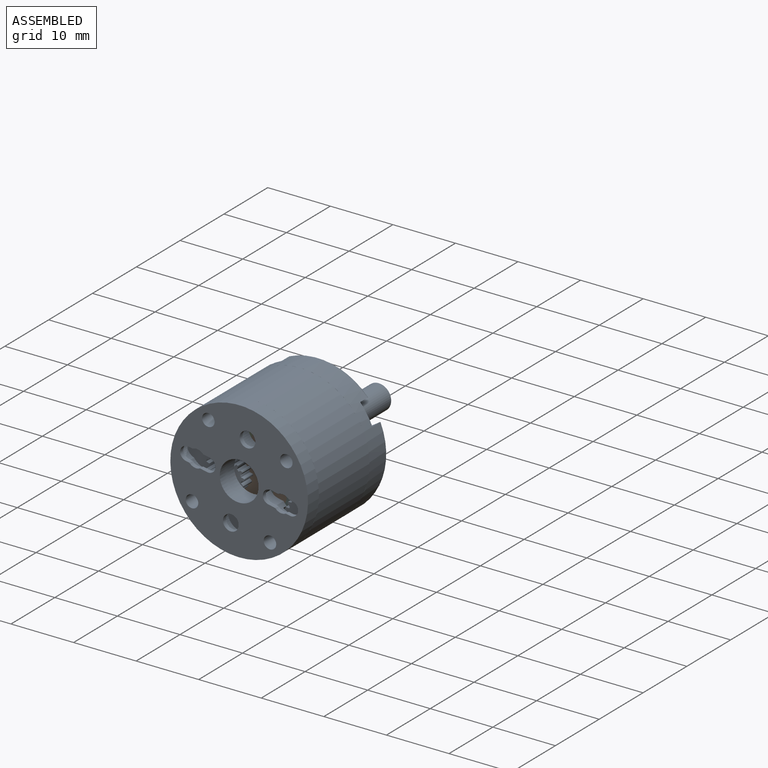
[diagram: assembled view]
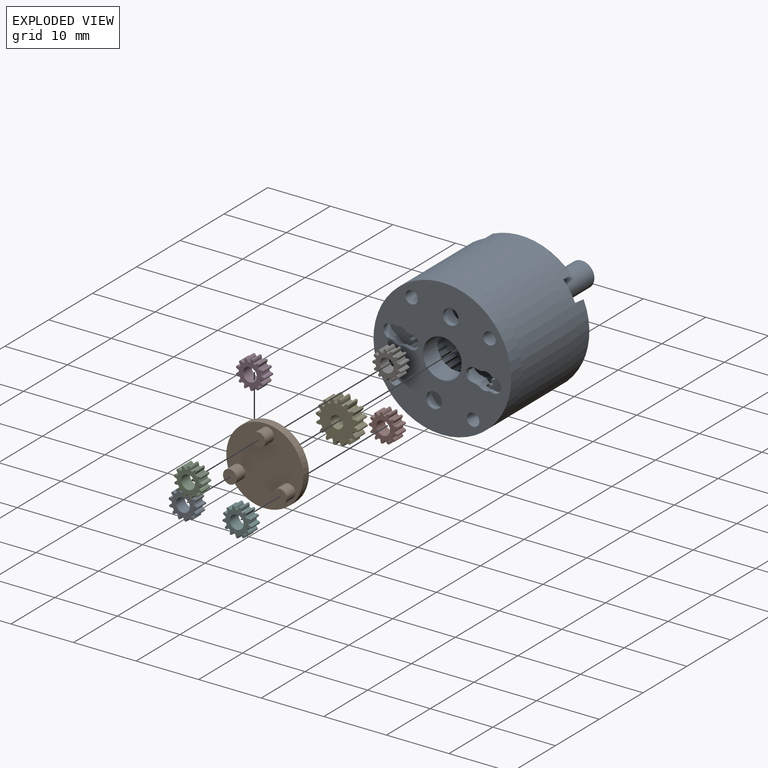
[diagram: exploded view]
GUIDED TOUR — MATED ASSEMBLY WITH SUBASSEMBLIES (Onshape document 57b5218062b9e988025ecf4e, AutoMate assembly 57b5218062b9e988025ecf4e_8886c2490278dff94fc5679e_6abe86f30e36404e3b47016e_default)

This assembly has 12 component occurrences arranged in 9 top-level units: 8 individual components plus 1 subassembly (S0). The tour has two levels: first the top level, where each subassembly is treated as one rigid unit; then each subassembly is toured internally in its own section (nesting deeper than one subassembly level is flattened into its subassembly's section).

Components are labeled P0..P11 across the whole record; subassembly units are labeled S0..S0. A mate is a constraint between two units; its type names the relative motion it leaves free:
  CYLINDRICAL — leaves both rotation about and translation along the listed axis free,
  FASTENED — locks the two components together rigidly (no relative motion),
  PLANAR — leaves sliding in the plane through the listed point (normal = the listed direction) and rotation about that normal free,
  REVOLUTE — leaves rotation about the listed axis free (a hinge).
Axis/direction vectors are unit vectors and 'through' points are millimeter coordinates, both in the assembly's world frame.

TOP-LEVEL MATES (between units; each subassembly's internal mates are listed in its own section)
  1. REVOLUTE "Revolute 1": P6 <-> S0, axis (0.000, 1.000, 0.000) through (-0.09, 2.40, -3.83) mm
  2. REVOLUTE "Revolute 3": P10 <-> S0, axis (0.000, 1.000, 0.000) through (6.83, 2.40, -4.16) mm
  3. CYLINDRICAL "Cylindrical 1": P2 <-> S0, axis (0.000, 1.000, 0.000) through (3.46, -0.65, -2.00) mm
  4. REVOLUTE "Revolute 6": P3 <-> P2, axis (0.000, 1.000, 0.000) through (3.86, -1.30, 2.60) mm
  5. REVOLUTE "Revolute 2": P9 <-> S0, axis (0.000, 1.000, 0.000) through (3.65, 2.40, 2.00) mm
  6. PLANAR "Planar 1": S0 <-> P2, direction (0.000, -1.000, 0.000) through (3.65, 0.40, 2.00) mm
  7. REVOLUTE "Revolute 5": P8 <-> P2, axis (0.000, 1.000, 0.000) through (7.25, -1.30, -4.64) mm
  8. FASTENED "Fastened 1": P7 <-> P2, direction (0.000, -1.000, 0.000) through (3.46, 0.00, -2.00) mm
  9. REVOLUTE "Revolute 7": P11 <-> P2, axis (0.000, 1.000, 0.000) through (-0.72, -1.30, -3.96) mm

TOP-LEVEL ASSEMBLY ORDER
  1. P2 — the base component [order heuristic]
  2. P7 [order verified]
  3. P3 — core [order heuristic]
  4. P8 — core [order heuristic]
  5. P11 — core [order heuristic]
  6. S0 — core [order heuristic]
  7. P10 [order verified]
  8. P9 [order verified]
  9. P6 [order verified]
(P10 verified with a relaxed clearance tolerance: the source model stores slight part interference there.)
Order-tag legend:
  [order verified] — this step's position reverses a verified removal order: the component was checked to insert without passing through the ones already placed.
  [order heuristic] — the first 5 components form the assembly's core: parts whose collision-free extraction could not be verified, listed in mate-graph order.

Of the 12 component occurrences, 3 carry the full construction recipe — the FeatureScript program that regenerates the part's solid from scratch; the rest are supplied as boundary geometry only. Each toured unit is shown spotlighted twice — assembled, then exploded with a leader line back to its socket (green = recipe-attached component, orange = geometry-only, blue = subassembly unit; the rest desaturated gray).
NOTE — document 2 of 2 of this assembly tour. The two overview renders and the header above are repeated from document 1; the component sections below continue where the previous document stopped.
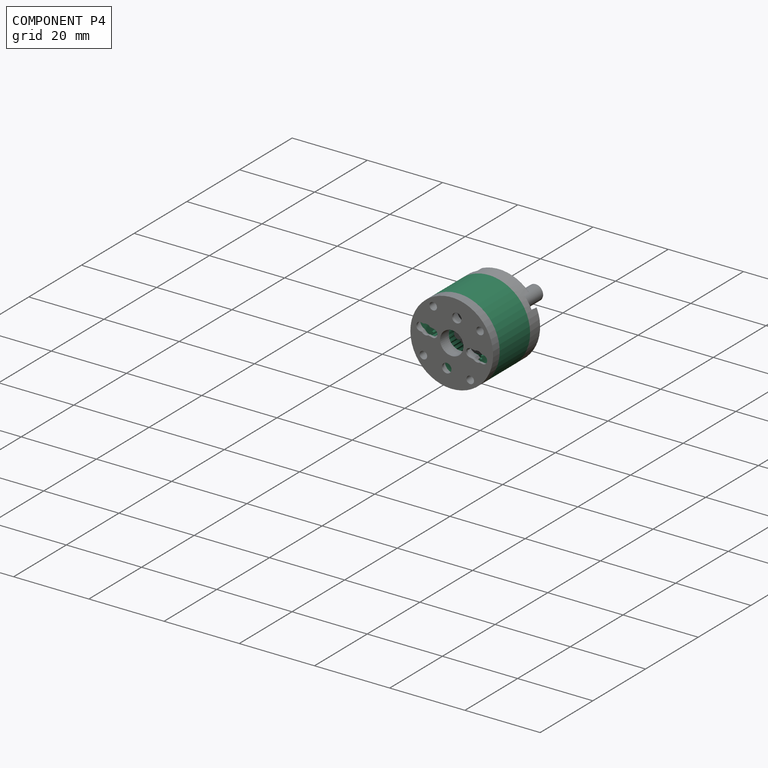
[diagram: component P4 — assembled]
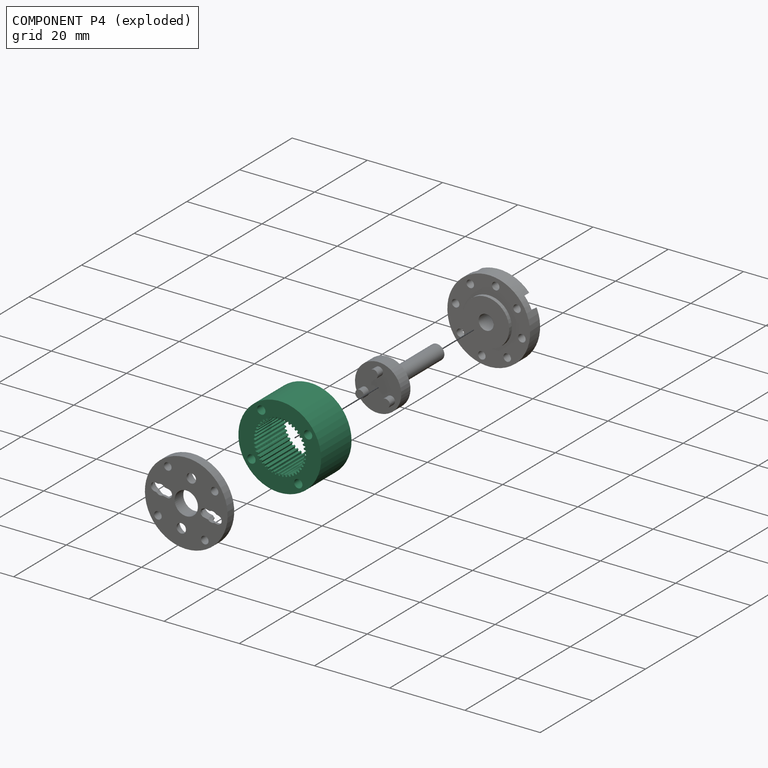
[diagram: component P4 — exploded]
COMPONENT P4 — recipe-attached (CADFS 00161367, mesh-verified: the recipe's output STEP matches this component's geometry to below the mesh-comparison resolution (tessellation chordal tolerance ~0.0497 mm)).
Held by: CYLINDRICAL mate "Cylindrical 2" to P1; REVOLUTE mate "Revolute 3" to P1; REVOLUTE mate "Revolute 2" to P0; CYLINDRICAL mate "Cylindrical 1" to P0; REVOLUTE mate "Revolute 2" to P0; REVOLUTE mate "Revolute 3" to P1; CYLINDRICAL mate "Cylindrical 2" to P1; CYLINDRICAL mate "Cylindrical 1" to P0.
Construction recipe (FeatureScript — the CAD program that rebuilds this solid; sketch coordinates are in the units given by the * unit suffixes, e.g. mm):

FeatureScript 1540;
import(path : "onshape/std/geometry.fs", version : "1540.0");
import(path : "onshape/std/common.fs", version : "1540.0");
const mm = millimeter;
const VERTEX = EntityType.VERTEX;
const EDGE = EntityType.EDGE;
const FACE = EntityType.FACE;
const BODY = EntityType.BODY;
function v(x, y){return vector(x, y);}
function OD(order){return orderDisambiguation(order);}
function OSD(set){return originalSetDisambiguation(set);}
function TD(topology){return topologyDisambiguation(topology);}
function TDD(query){return trueDependencyDisambiguation(query);}
function sQuery(a, b, c) {return sketchEntityQuery(a, b, c);}

annotation { "Feature Type Name" : "Feature", "Feature Type Description" : "" }
export const myFeature = defineFeature(function(context is Context, id is Id, definition is map)
    precondition{}
    {
        {
            var Q0;
            Q0=qCreatedBy(makeId("Front.planeOp"),FACE);
            var sketch = newSketch(context, id + "F0", { "sketchPlane" : qUnion([Q0])});
            skCircle(sketch, "E0", {"center": v(0, 0) * mm, "radius": 11 * mm});
            skSolve(sketch);
        }
        {
            var Q0;
            Q0=qSketchRegion(id+"F0",true);
            var Q1;
            Q1=makeQuery(id+"F0.imprint","IMPRINT",FACE,{"disambiguationData":[TD([[makeQuery(id+"F0.imprint","IMPRINT",EDGE,{"derivedFrom":sQuery(id+"F0.wireOp",EDGE,"E0")}),1.0]])]});
            extrude(context, id + "F1", {"entities" : qUnion([Q0, Q1]), "depth" : 11.55 * mm});
        }
        {
            var Q0;
            Q0=makeQuery(id+"F1.opExtrude","CAP_FACE",FACE,{"disambiguationData":[OSD([sQuery(id+"F0.wireOp",EDGE,"E0"),sQuery(id+"F0.wireOp",EDGE,"2902f3af-6cdb-4536-80c8-8346aa25ecb7")])],"isStart":false});
            var sketch = newSketch(context, id + "F2", { "sketchPlane" : qUnion([Q0])});
            skLineSegment(sketch, "E1", {"start": v(0, 27.51) * mm, "end": v(0, -34.9) * mm, "construction": true});
            skCircle(sketch, "E2", {"center": v(0, 9) * mm, "radius": 1.1 * mm});
            skCircle(sketch, "E3.1.0", {"center": v(-9, 0) * mm, "radius": 1.1 * mm});
            skCircle(sketch, "E3.2.0", {"center": v(0, -9) * mm, "radius": 1.1 * mm});
            skCircle(sketch, "E3.3.0", {"center": v(9, 0) * mm, "radius": 1.1 * mm});
            skPoint(sketch, "E3.center", {"position": v(0, 0) * mm});
            skSolve(sketch);
        }
        {
            var Q0;
            Q0=qSketchRegion(id+"F2",true);
            extrude(context, id + "F3", {"entities" : qUnion([Q0]), "operationType" : NewBodyOperationType.REMOVE, "endBound" : BoundingType.THROUGH_ALL, "oppositeDirection" : true, "depth" : 25 * mm});
        }
        {
            var Q0;
            Q0=makeQuery(id+"F1.opExtrude","CAP_FACE",FACE,{"disambiguationData":[OSD([sQuery(id+"F0.wireOp",EDGE,"E0")])],"isStart":false});
            var sketch = newSketch(context, id + "F4", { "sketchPlane" : qUnion([Q0])});
            skCircle(sketch, "E4", {"center": v(0, 0) * mm, "radius": 7 * mm, "construction": true});
            skCircle(sketch, "E5", {"center": v(0, 0) * mm, "radius": 6.75 * mm, "construction": true});
            skCircle(sketch, "E6", {"center": v(0, 0) * mm, "radius": 6.5 * mm, "construction": true});
            skLineSegment(sketch, "E7", {"start": v(0, 0) * mm, "end": v(0, 20.22) * mm, "construction": true});
            skLineSegment(sketch, "E8", {"start": v(0, 0) * mm, "end": v(-0.7, 20.22) * mm, "construction": true});
            skLineSegment(sketch, "E9", {"start": v(0, 6.75) * mm, "end": v(-8.2, 6.75) * mm, "construction": true});
            skLineSegment(sketch, "E10", {"start": v(0, 6.75) * mm, "end": v(-7.4, 4.05) * mm, "construction": true});
            skCircle(sketch, "E11", {"center": v(0, 6.75) * mm, "radius": 2.07 * mm, "construction": true});
            skCircle(sketch, "E12", {"center": v(-1.95, 6.04) * mm, "radius": 2.07 * mm, "construction": true});
            skArc(sketch, "E13", {"start": v(-0.1, 7) * mm, "mid": v(0, 6.76) * mm, "end": v(0.07, 6.5) * mm, "construction": true});
            skArc(sketch, "E14.MirrorCS", {"start": v(-0.37, 7) * mm, "mid": v(-0.46, 6.74) * mm, "end": v(-0.52, 6.48) * mm, "construction": true});
            skArc(sketch, "E15", {"start": v(-0.37, 6.98) * mm, "mid": v(-0.46, 6.74) * mm, "end": v(-0.52, 6.49) * mm});
            skArc(sketch, "E16", {"start": v(-0.36, 7) * mm, "mid": v(-0.24, 7) * mm, "end": v(-0.12, 7) * mm});
            skArc(sketch, "E17", {"start": v(-0.1, 7) * mm, "mid": v(0, 6.76) * mm, "end": v(0.07, 6.5) * mm});
            skArc(sketch, "E18", {"start": v(-0.53, 6.48) * mm, "mid": v(0.22, -6.5) * mm, "end": v(0.08, 6.5) * mm});
            skPoint(sketch, "E19.visualSharp", {"position": v(-0.52, 6.48) * mm});
            skArc(sketch, "E19.filletArc", {"start": v(-0.53, 6.48) * mm, "mid": v(-0.52, 6.48) * mm, "end": v(-0.52, 6.49) * mm});
            skPoint(sketch, "E20.visualSharp", {"position": v(-0.37, 7) * mm});
            skArc(sketch, "E20.filletArc", {"start": v(-0.36, 7) * mm, "mid": v(-0.37, 6.99) * mm, "end": v(-0.37, 6.98) * mm});
            skPoint(sketch, "E21.visualSharp", {"position": v(-0.1, 7) * mm});
            skArc(sketch, "E21.filletArc", {"start": v(-0.1, 7) * mm, "mid": v(-0.11, 7) * mm, "end": v(-0.12, 7) * mm});
            skPoint(sketch, "E22.visualSharp", {"position": v(0.07, 6.5) * mm});
            skArc(sketch, "E22.filletArc", {"start": v(0.07, 6.5) * mm, "mid": v(0.08, 6.5) * mm, "end": v(0.08, 6.5) * mm});
            skArc(sketch, "E23.1.0", {"start": v(-1.44, 6.34) * mm, "mid": v(-1.44, 6.34) * mm, "end": v(-1.43, 6.35) * mm});
            skArc(sketch, "E23.1.1", {"start": v(-1.36, 6.86) * mm, "mid": v(-1.41, 6.6) * mm, "end": v(-1.43, 6.35) * mm});
            skArc(sketch, "E23.1.2", {"start": v(-1.35, 6.87) * mm, "mid": v(-1.36, 6.87) * mm, "end": v(-1.36, 6.86) * mm});
            skArc(sketch, "E23.1.3", {"start": v(-1.35, 6.87) * mm, "mid": v(-1.23, 6.9) * mm, "end": v(-1.11, 6.91) * mm});
            skArc(sketch, "E23.1.4", {"start": v(-1.1, 6.9) * mm, "mid": v(-1.1, 6.91) * mm, "end": v(-1.11, 6.91) * mm});
            skArc(sketch, "E23.1.5", {"start": v(-1.1, 6.9) * mm, "mid": v(-0.96, 6.69) * mm, "end": v(-0.86, 6.45) * mm});
            skArc(sketch, "E23.1.6", {"start": v(-0.86, 6.45) * mm, "mid": v(-0.85, 6.45) * mm, "end": v(-0.84, 6.45) * mm});
            skArc(sketch, "E23.2.0", {"start": v(-2.33, 6.07) * mm, "mid": v(-2.32, 6.07) * mm, "end": v(-2.32, 6.08) * mm});
            skArc(sketch, "E23.2.1", {"start": v(-2.32, 6.6) * mm, "mid": v(-2.34, 6.34) * mm, "end": v(-2.32, 6.08) * mm});
            skArc(sketch, "E23.2.2", {"start": v(-2.31, 6.6) * mm, "mid": v(-2.32, 6.6) * mm, "end": v(-2.32, 6.6) * mm});
            skArc(sketch, "E23.2.3", {"start": v(-2.31, 6.6) * mm, "mid": v(-2.2, 6.65) * mm, "end": v(-2.09, 6.68) * mm});
            skArc(sketch, "E23.2.4", {"start": v(-2.07, 6.68) * mm, "mid": v(-2.08, 6.68) * mm, "end": v(-2.09, 6.68) * mm});
            skArc(sketch, "E23.2.5", {"start": v(-2.07, 6.68) * mm, "mid": v(-1.9, 6.48) * mm, "end": v(-1.77, 6.27) * mm});
            skArc(sketch, "E23.2.6", {"start": v(-1.77, 6.27) * mm, "mid": v(-1.76, 6.26) * mm, "end": v(-1.75, 6.26) * mm});
            skArc(sketch, "E23.3.0", {"start": v(-3.17, 5.67) * mm, "mid": v(-3.17, 5.68) * mm, "end": v(-3.16, 5.69) * mm});
            skArc(sketch, "E23.3.1", {"start": v(-3.24, 6.2) * mm, "mid": v(-3.22, 5.94) * mm, "end": v(-3.16, 5.69) * mm});
            skArc(sketch, "E23.3.2", {"start": v(-3.23, 6.2) * mm, "mid": v(-3.24, 6.2) * mm, "end": v(-3.24, 6.2) * mm});
            skArc(sketch, "E23.3.3", {"start": v(-3.23, 6.2) * mm, "mid": v(-3.12, 6.26) * mm, "end": v(-3.01, 6.32) * mm});
            skArc(sketch, "E23.3.4", {"start": v(-3, 6.32) * mm, "mid": v(-3, 6.32) * mm, "end": v(-3.01, 6.32) * mm});
            skArc(sketch, "E23.3.5", {"start": v(-3, 6.32) * mm, "mid": v(-2.8, 6.14) * mm, "end": v(-2.64, 5.95) * mm});
            skArc(sketch, "E23.3.6", {"start": v(-2.64, 5.95) * mm, "mid": v(-2.63, 5.95) * mm, "end": v(-2.62, 5.95) * mm});
            skArc(sketch, "E23.4.0", {"start": v(-3.95, 5.16) * mm, "mid": v(-3.94, 5.17) * mm, "end": v(-3.94, 5.18) * mm});
            skArc(sketch, "E23.4.1", {"start": v(-4.09, 5.67) * mm, "mid": v(-4.03, 5.42) * mm, "end": v(-3.94, 5.18) * mm});
            skArc(sketch, "E23.4.2", {"start": v(-4.08, 5.69) * mm, "mid": v(-4.09, 5.68) * mm, "end": v(-4.09, 5.67) * mm});
            skArc(sketch, "E23.4.3", {"start": v(-4.08, 5.69) * mm, "mid": v(-3.98, 5.76) * mm, "end": v(-3.88, 5.82) * mm});
            skArc(sketch, "E23.4.4", {"start": v(-3.87, 5.82) * mm, "mid": v(-3.88, 5.83) * mm, "end": v(-3.88, 5.82) * mm});
            skArc(sketch, "E23.4.5", {"start": v(-3.87, 5.82) * mm, "mid": v(-3.65, 5.68) * mm, "end": v(-3.46, 5.52) * mm});
            skArc(sketch, "E23.4.6", {"start": v(-3.46, 5.52) * mm, "mid": v(-3.45, 5.51) * mm, "end": v(-3.44, 5.51) * mm});
            skArc(sketch, "E23.5.0", {"start": v(-4.64, 4.55) * mm, "mid": v(-4.64, 4.56) * mm, "end": v(-4.64, 4.57) * mm});
            skArc(sketch, "E23.5.1", {"start": v(-4.85, 5.03) * mm, "mid": v(-4.76, 4.8) * mm, "end": v(-4.64, 4.57) * mm});
            skArc(sketch, "E23.5.2", {"start": v(-4.85, 5.05) * mm, "mid": v(-4.85, 5.04) * mm, "end": v(-4.85, 5.03) * mm});
            skArc(sketch, "E23.5.3", {"start": v(-4.85, 5.05) * mm, "mid": v(-4.76, 5.13) * mm, "end": v(-4.67, 5.21) * mm});
            skArc(sketch, "E23.5.4", {"start": v(-4.66, 5.21) * mm, "mid": v(-4.67, 5.22) * mm, "end": v(-4.67, 5.21) * mm});
            skArc(sketch, "E23.5.5", {"start": v(-4.66, 5.21) * mm, "mid": v(-4.43, 5.1) * mm, "end": v(-4.2, 4.97) * mm});
            skArc(sketch, "E23.5.6", {"start": v(-4.2, 4.97) * mm, "mid": v(-4.2, 4.96) * mm, "end": v(-4.2, 4.97) * mm});
            skArc(sketch, "E23.6.0", {"start": v(-5.24, 3.84) * mm, "mid": v(-5.24, 3.85) * mm, "end": v(-5.24, 3.86) * mm});
            skArc(sketch, "E23.6.1", {"start": v(-5.52, 4.3) * mm, "mid": v(-5.4, 4.07) * mm, "end": v(-5.24, 3.86) * mm});
            skArc(sketch, "E23.6.2", {"start": v(-5.52, 4.3) * mm, "mid": v(-5.52, 4.3) * mm, "end": v(-5.52, 4.3) * mm});
            skArc(sketch, "E23.6.3", {"start": v(-5.52, 4.3) * mm, "mid": v(-5.44, 4.4) * mm, "end": v(-5.37, 4.5) * mm});
            skArc(sketch, "E23.6.4", {"start": v(-5.35, 4.5) * mm, "mid": v(-5.36, 4.5) * mm, "end": v(-5.37, 4.5) * mm});
            skArc(sketch, "E23.6.5", {"start": v(-5.35, 4.5) * mm, "mid": v(-5.1, 4.42) * mm, "end": v(-4.87, 4.32) * mm});
            skArc(sketch, "E23.6.6", {"start": v(-4.87, 4.32) * mm, "mid": v(-4.86, 4.32) * mm, "end": v(-4.86, 4.32) * mm});
            skArc(sketch, "E23.7.0", {"start": v(-5.74, 3.06) * mm, "mid": v(-5.73, 3.07) * mm, "end": v(-5.74, 3.08) * mm});
            skArc(sketch, "E23.7.1", {"start": v(-6.08, 3.46) * mm, "mid": v(-5.92, 3.26) * mm, "end": v(-5.74, 3.08) * mm});
            skArc(sketch, "E23.7.2", {"start": v(-6.08, 3.48) * mm, "mid": v(-6.08, 3.47) * mm, "end": v(-6.08, 3.46) * mm});
            skArc(sketch, "E23.7.3", {"start": v(-6.08, 3.48) * mm, "mid": v(-6.01, 3.58) * mm, "end": v(-5.95, 3.68) * mm});
            skArc(sketch, "E23.7.4", {"start": v(-5.94, 3.7) * mm, "mid": v(-5.95, 3.69) * mm, "end": v(-5.95, 3.68) * mm});
            skArc(sketch, "E23.7.5", {"start": v(-5.94, 3.7) * mm, "mid": v(-5.69, 3.65) * mm, "end": v(-5.44, 3.58) * mm});
            skArc(sketch, "E23.7.6", {"start": v(-5.44, 3.58) * mm, "mid": v(-5.43, 3.58) * mm, "end": v(-5.42, 3.58) * mm});
            skArc(sketch, "E23.8.0", {"start": v(-6.11, 2.21) * mm, "mid": v(-6.11, 2.22) * mm, "end": v(-6.12, 2.23) * mm});
            skArc(sketch, "E23.8.1", {"start": v(-6.5, 2.56) * mm, "mid": v(-6.32, 2.38) * mm, "end": v(-6.12, 2.23) * mm});
            skArc(sketch, "E23.8.2", {"start": v(-6.5, 2.58) * mm, "mid": v(-6.5, 2.57) * mm, "end": v(-6.5, 2.56) * mm});
            skArc(sketch, "E23.8.3", {"start": v(-6.5, 2.58) * mm, "mid": v(-6.46, 2.69) * mm, "end": v(-6.42, 2.8) * mm});
            skArc(sketch, "E23.8.4", {"start": v(-6.4, 2.8) * mm, "mid": v(-6.41, 2.8) * mm, "end": v(-6.42, 2.8) * mm});
            skArc(sketch, "E23.8.5", {"start": v(-6.4, 2.8) * mm, "mid": v(-6.15, 2.8) * mm, "end": v(-5.9, 2.77) * mm});
            skArc(sketch, "E23.8.6", {"start": v(-5.9, 2.77) * mm, "mid": v(-5.88, 2.77) * mm, "end": v(-5.88, 2.78) * mm});
            skArc(sketch, "E23.9.0", {"start": v(-6.36, 1.32) * mm, "mid": v(-6.37, 1.33) * mm, "end": v(-6.37, 1.33) * mm});
            skArc(sketch, "E23.9.1", {"start": v(-6.8, 1.61) * mm, "mid": v(-6.6, 1.46) * mm, "end": v(-6.37, 1.33) * mm});
            skArc(sketch, "E23.9.2", {"start": v(-6.8, 1.62) * mm, "mid": v(-6.8, 1.62) * mm, "end": v(-6.8, 1.61) * mm});
            skArc(sketch, "E23.9.3", {"start": v(-6.8, 1.62) * mm, "mid": v(-6.78, 1.74) * mm, "end": v(-6.75, 1.86) * mm});
            skArc(sketch, "E23.9.4", {"start": v(-6.74, 1.87) * mm, "mid": v(-6.74, 1.86) * mm, "end": v(-6.75, 1.86) * mm});
            skArc(sketch, "E23.9.5", {"start": v(-6.74, 1.87) * mm, "mid": v(-6.48, 1.9) * mm, "end": v(-6.23, 1.9) * mm});
            skArc(sketch, "E23.9.6", {"start": v(-6.23, 1.9) * mm, "mid": v(-6.22, 1.9) * mm, "end": v(-6.21, 1.91) * mm});
            skArc(sketch, "E23.10.0", {"start": v(-6.49, 0.4) * mm, "mid": v(-6.5, 0.4) * mm, "end": v(-6.5, 0.41) * mm});
            skArc(sketch, "E23.10.1", {"start": v(-6.96, 0.63) * mm, "mid": v(-6.74, 0.5) * mm, "end": v(-6.5, 0.41) * mm});
            skArc(sketch, "E23.10.2", {"start": v(-6.97, 0.64) * mm, "mid": v(-6.97, 0.63) * mm, "end": v(-6.96, 0.63) * mm});
            skArc(sketch, "E23.10.3", {"start": v(-6.97, 0.64) * mm, "mid": v(-6.96, 0.76) * mm, "end": v(-6.94, 0.88) * mm});
            skArc(sketch, "E23.10.4", {"start": v(-6.94, 0.9) * mm, "mid": v(-6.94, 0.89) * mm, "end": v(-6.94, 0.88) * mm});
            skArc(sketch, "E23.10.5", {"start": v(-6.94, 0.9) * mm, "mid": v(-6.69, 0.96) * mm, "end": v(-6.43, 1) * mm});
            skArc(sketch, "E23.10.6", {"start": v(-6.43, 1) * mm, "mid": v(-6.43, 1) * mm, "end": v(-6.42, 1) * mm});
            skArc(sketch, "E23.11.0", {"start": v(-6.48, -0.53) * mm, "mid": v(-6.48, -0.52) * mm, "end": v(-6.49, -0.52) * mm});
            skArc(sketch, "E23.11.1", {"start": v(-6.98, -0.37) * mm, "mid": v(-6.74, -0.46) * mm, "end": v(-6.49, -0.52) * mm});
            skArc(sketch, "E23.11.2", {"start": v(-7, -0.36) * mm, "mid": v(-6.99, -0.37) * mm, "end": v(-6.98, -0.37) * mm});
            skArc(sketch, "E23.11.3", {"start": v(-7, -0.36) * mm, "mid": v(-7, -0.24) * mm, "end": v(-7, -0.12) * mm});
            skArc(sketch, "E23.11.4", {"start": v(-7, -0.1) * mm, "mid": v(-7, -0.11) * mm, "end": v(-7, -0.12) * mm});
            skArc(sketch, "E23.11.5", {"start": v(-7, -0.1) * mm, "mid": v(-6.76, 0) * mm, "end": v(-6.5, 0.07) * mm});
            skArc(sketch, "E23.11.6", {"start": v(-6.5, 0.07) * mm, "mid": v(-6.5, 0.08) * mm, "end": v(-6.5, 0.08) * mm});
            skArc(sketch, "E23.12.0", {"start": v(-6.34, -1.44) * mm, "mid": v(-6.34, -1.44) * mm, "end": v(-6.35, -1.43) * mm});
            skArc(sketch, "E23.12.1", {"start": v(-6.86, -1.36) * mm, "mid": v(-6.6, -1.41) * mm, "end": v(-6.35, -1.43) * mm});
            skArc(sketch, "E23.12.2", {"start": v(-6.87, -1.35) * mm, "mid": v(-6.87, -1.36) * mm, "end": v(-6.86, -1.36) * mm});
            skArc(sketch, "E23.12.3", {"start": v(-6.87, -1.35) * mm, "mid": v(-6.9, -1.23) * mm, "end": v(-6.91, -1.11) * mm});
            skArc(sketch, "E23.12.4", {"start": v(-6.9, -1.1) * mm, "mid": v(-6.91, -1.1) * mm, "end": v(-6.91, -1.11) * mm});
            skArc(sketch, "E23.12.5", {"start": v(-6.9, -1.1) * mm, "mid": v(-6.69, -0.96) * mm, "end": v(-6.45, -0.86) * mm});
            skArc(sketch, "E23.12.6", {"start": v(-6.45, -0.86) * mm, "mid": v(-6.45, -0.85) * mm, "end": v(-6.45, -0.84) * mm});
            skArc(sketch, "E23.13.0", {"start": v(-6.07, -2.33) * mm, "mid": v(-6.07, -2.32) * mm, "end": v(-6.08, -2.32) * mm});
            skArc(sketch, "E23.13.1", {"start": v(-6.6, -2.32) * mm, "mid": v(-6.34, -2.34) * mm, "end": v(-6.08, -2.32) * mm});
            skArc(sketch, "E23.13.2", {"start": v(-6.6, -2.31) * mm, "mid": v(-6.6, -2.32) * mm, "end": v(-6.6, -2.32) * mm});
            skArc(sketch, "E23.13.3", {"start": v(-6.6, -2.31) * mm, "mid": v(-6.65, -2.2) * mm, "end": v(-6.68, -2.09) * mm});
            skArc(sketch, "E23.13.4", {"start": v(-6.68, -2.07) * mm, "mid": v(-6.68, -2.08) * mm, "end": v(-6.68, -2.09) * mm});
            skArc(sketch, "E23.13.5", {"start": v(-6.68, -2.07) * mm, "mid": v(-6.48, -1.9) * mm, "end": v(-6.27, -1.77) * mm});
            skArc(sketch, "E23.13.6", {"start": v(-6.27, -1.77) * mm, "mid": v(-6.26, -1.76) * mm, "end": v(-6.26, -1.75) * mm});
            skArc(sketch, "E23.14.0", {"start": v(-5.67, -3.17) * mm, "mid": v(-5.68, -3.17) * mm, "end": v(-5.69, -3.16) * mm});
            skArc(sketch, "E23.14.1", {"start": v(-6.2, -3.24) * mm, "mid": v(-5.94, -3.22) * mm, "end": v(-5.69, -3.16) * mm});
            skArc(sketch, "E23.14.2", {"start": v(-6.2, -3.23) * mm, "mid": v(-6.2, -3.24) * mm, "end": v(-6.2, -3.24) * mm});
            skArc(sketch, "E23.14.3", {"start": v(-6.2, -3.23) * mm, "mid": v(-6.26, -3.12) * mm, "end": v(-6.32, -3.01) * mm});
            skArc(sketch, "E23.14.4", {"start": v(-6.32, -3) * mm, "mid": v(-6.32, -3) * mm, "end": v(-6.32, -3.01) * mm});
            skArc(sketch, "E23.14.5", {"start": v(-6.32, -3) * mm, "mid": v(-6.14, -2.8) * mm, "end": v(-5.95, -2.64) * mm});
            skArc(sketch, "E23.14.6", {"start": v(-5.95, -2.64) * mm, "mid": v(-5.95, -2.63) * mm, "end": v(-5.95, -2.62) * mm});
            skArc(sketch, "E23.15.0", {"start": v(-5.16, -3.95) * mm, "mid": v(-5.17, -3.94) * mm, "end": v(-5.18, -3.94) * mm});
            skArc(sketch, "E23.15.1", {"start": v(-5.67, -4.09) * mm, "mid": v(-5.42, -4.03) * mm, "end": v(-5.18, -3.94) * mm});
            skArc(sketch, "E23.15.2", {"start": v(-5.69, -4.08) * mm, "mid": v(-5.68, -4.09) * mm, "end": v(-5.67, -4.09) * mm});
            skArc(sketch, "E23.15.3", {"start": v(-5.69, -4.08) * mm, "mid": v(-5.76, -3.98) * mm, "end": v(-5.82, -3.88) * mm});
            skArc(sketch, "E23.15.4", {"start": v(-5.82, -3.87) * mm, "mid": v(-5.83, -3.88) * mm, "end": v(-5.82, -3.88) * mm});
            skArc(sketch, "E23.15.5", {"start": v(-5.82, -3.87) * mm, "mid": v(-5.68, -3.65) * mm, "end": v(-5.52, -3.46) * mm});
            skArc(sketch, "E23.15.6", {"start": v(-5.52, -3.46) * mm, "mid": v(-5.51, -3.45) * mm, "end": v(-5.51, -3.44) * mm});
            skArc(sketch, "E23.16.0", {"start": v(-4.55, -4.64) * mm, "mid": v(-4.56, -4.64) * mm, "end": v(-4.57, -4.64) * mm});
            skArc(sketch, "E23.16.1", {"start": v(-5.03, -4.85) * mm, "mid": v(-4.8, -4.76) * mm, "end": v(-4.57, -4.64) * mm});
            skArc(sketch, "E23.16.2", {"start": v(-5.05, -4.85) * mm, "mid": v(-5.04, -4.85) * mm, "end": v(-5.03, -4.85) * mm});
            skArc(sketch, "E23.16.3", {"start": v(-5.05, -4.85) * mm, "mid": v(-5.13, -4.76) * mm, "end": v(-5.21, -4.67) * mm});
            skArc(sketch, "E23.16.4", {"start": v(-5.21, -4.66) * mm, "mid": v(-5.22, -4.67) * mm, "end": v(-5.21, -4.67) * mm});
            skArc(sketch, "E23.16.5", {"start": v(-5.21, -4.66) * mm, "mid": v(-5.1, -4.43) * mm, "end": v(-4.97, -4.2) * mm});
            skArc(sketch, "E23.16.6", {"start": v(-4.97, -4.2) * mm, "mid": v(-4.96, -4.2) * mm, "end": v(-4.97, -4.2) * mm});
            skArc(sketch, "E23.17.0", {"start": v(-3.84, -5.24) * mm, "mid": v(-3.85, -5.24) * mm, "end": v(-3.86, -5.24) * mm});
            skArc(sketch, "E23.17.1", {"start": v(-4.3, -5.52) * mm, "mid": v(-4.07, -5.4) * mm, "end": v(-3.86, -5.24) * mm});
            skArc(sketch, "E23.17.2", {"start": v(-4.3, -5.52) * mm, "mid": v(-4.3, -5.52) * mm, "end": v(-4.3, -5.52) * mm});
            skArc(sketch, "E23.17.3", {"start": v(-4.3, -5.52) * mm, "mid": v(-4.4, -5.44) * mm, "end": v(-4.5, -5.37) * mm});
            skArc(sketch, "E23.17.4", {"start": v(-4.5, -5.35) * mm, "mid": v(-4.5, -5.36) * mm, "end": v(-4.5, -5.37) * mm});
            skArc(sketch, "E23.17.5", {"start": v(-4.5, -5.35) * mm, "mid": v(-4.42, -5.1) * mm, "end": v(-4.32, -4.87) * mm});
            skArc(sketch, "E23.17.6", {"start": v(-4.32, -4.87) * mm, "mid": v(-4.32, -4.86) * mm, "end": v(-4.32, -4.86) * mm});
            skArc(sketch, "E23.18.0", {"start": v(-3.06, -5.74) * mm, "mid": v(-3.07, -5.73) * mm, "end": v(-3.08, -5.74) * mm});
            skArc(sketch, "E23.18.1", {"start": v(-3.46, -6.08) * mm, "mid": v(-3.26, -5.92) * mm, "end": v(-3.08, -5.74) * mm});
            skArc(sketch, "E23.18.2", {"start": v(-3.48, -6.08) * mm, "mid": v(-3.47, -6.08) * mm, "end": v(-3.46, -6.08) * mm});
            skArc(sketch, "E23.18.3", {"start": v(-3.48, -6.08) * mm, "mid": v(-3.58, -6.01) * mm, "end": v(-3.68, -5.95) * mm});
            skArc(sketch, "E23.18.4", {"start": v(-3.7, -5.94) * mm, "mid": v(-3.69, -5.95) * mm, "end": v(-3.68, -5.95) * mm});
            skArc(sketch, "E23.18.5", {"start": v(-3.7, -5.94) * mm, "mid": v(-3.65, -5.69) * mm, "end": v(-3.58, -5.44) * mm});
            skArc(sketch, "E23.18.6", {"start": v(-3.58, -5.44) * mm, "mid": v(-3.58, -5.43) * mm, "end": v(-3.58, -5.42) * mm});
            skArc(sketch, "E23.19.0", {"start": v(-2.21, -6.11) * mm, "mid": v(-2.22, -6.11) * mm, "end": v(-2.23, -6.12) * mm});
            skArc(sketch, "E23.19.1", {"start": v(-2.56, -6.5) * mm, "mid": v(-2.38, -6.32) * mm, "end": v(-2.23, -6.12) * mm});
            skArc(sketch, "E23.19.2", {"start": v(-2.58, -6.5) * mm, "mid": v(-2.57, -6.5) * mm, "end": v(-2.56, -6.5) * mm});
            skArc(sketch, "E23.19.3", {"start": v(-2.58, -6.5) * mm, "mid": v(-2.69, -6.46) * mm, "end": v(-2.8, -6.42) * mm});
            skArc(sketch, "E23.19.4", {"start": v(-2.8, -6.4) * mm, "mid": v(-2.8, -6.41) * mm, "end": v(-2.8, -6.42) * mm});
            skArc(sketch, "E23.19.5", {"start": v(-2.8, -6.4) * mm, "mid": v(-2.8, -6.15) * mm, "end": v(-2.77, -5.9) * mm});
            skArc(sketch, "E23.19.6", {"start": v(-2.77, -5.9) * mm, "mid": v(-2.77, -5.88) * mm, "end": v(-2.78, -5.88) * mm});
            skArc(sketch, "E23.20.0", {"start": v(-1.32, -6.36) * mm, "mid": v(-1.33, -6.37) * mm, "end": v(-1.33, -6.37) * mm});
            skArc(sketch, "E23.20.1", {"start": v(-1.61, -6.8) * mm, "mid": v(-1.46, -6.6) * mm, "end": v(-1.33, -6.37) * mm});
            skArc(sketch, "E23.20.2", {"start": v(-1.62, -6.8) * mm, "mid": v(-1.62, -6.8) * mm, "end": v(-1.61, -6.8) * mm});
            skArc(sketch, "E23.20.3", {"start": v(-1.62, -6.8) * mm, "mid": v(-1.74, -6.78) * mm, "end": v(-1.86, -6.75) * mm});
            skArc(sketch, "E23.20.4", {"start": v(-1.87, -6.74) * mm, "mid": v(-1.86, -6.74) * mm, "end": v(-1.86, -6.75) * mm});
            skArc(sketch, "E23.20.5", {"start": v(-1.87, -6.74) * mm, "mid": v(-1.9, -6.48) * mm, "end": v(-1.9, -6.23) * mm});
            skArc(sketch, "E23.20.6", {"start": v(-1.9, -6.23) * mm, "mid": v(-1.9, -6.22) * mm, "end": v(-1.91, -6.21) * mm});
            skArc(sketch, "E23.21.0", {"start": v(-0.4, -6.49) * mm, "mid": v(-0.4, -6.5) * mm, "end": v(-0.41, -6.5) * mm});
            skArc(sketch, "E23.21.1", {"start": v(-0.63, -6.96) * mm, "mid": v(-0.5, -6.74) * mm, "end": v(-0.41, -6.5) * mm});
            skArc(sketch, "E23.21.2", {"start": v(-0.64, -6.97) * mm, "mid": v(-0.63, -6.97) * mm, "end": v(-0.63, -6.96) * mm});
            skArc(sketch, "E23.21.3", {"start": v(-0.64, -6.97) * mm, "mid": v(-0.76, -6.96) * mm, "end": v(-0.88, -6.94) * mm});
            skArc(sketch, "E23.21.4", {"start": v(-0.9, -6.94) * mm, "mid": v(-0.89, -6.94) * mm, "end": v(-0.88, -6.94) * mm});
            skArc(sketch, "E23.21.5", {"start": v(-0.9, -6.94) * mm, "mid": v(-0.96, -6.69) * mm, "end": v(-1, -6.43) * mm});
            skArc(sketch, "E23.21.6", {"start": v(-1, -6.43) * mm, "mid": v(-1, -6.43) * mm, "end": v(-1, -6.42) * mm});
            skArc(sketch, "E23.22.0", {"start": v(0.53, -6.48) * mm, "mid": v(0.52, -6.48) * mm, "end": v(0.52, -6.49) * mm});
            skArc(sketch, "E23.22.1", {"start": v(0.37, -6.98) * mm, "mid": v(0.46, -6.74) * mm, "end": v(0.52, -6.49) * mm});
            skArc(sketch, "E23.22.2", {"start": v(0.36, -7) * mm, "mid": v(0.37, -6.99) * mm, "end": v(0.37, -6.98) * mm});
            skArc(sketch, "E23.22.3", {"start": v(0.36, -7) * mm, "mid": v(0.24, -7) * mm, "end": v(0.12, -7) * mm});
            skArc(sketch, "E23.22.4", {"start": v(0.1, -7) * mm, "mid": v(0.11, -7) * mm, "end": v(0.12, -7) * mm});
            skArc(sketch, "E23.22.5", {"start": v(0.1, -7) * mm, "mid": v(0, -6.76) * mm, "end": v(-0.07, -6.5) * mm});
            skArc(sketch, "E23.22.6", {"start": v(-0.07, -6.5) * mm, "mid": v(-0.08, -6.5) * mm, "end": v(-0.08, -6.5) * mm});
            skArc(sketch, "E23.23.0", {"start": v(1.44, -6.34) * mm, "mid": v(1.44, -6.34) * mm, "end": v(1.43, -6.35) * mm});
            skArc(sketch, "E23.23.1", {"start": v(1.36, -6.86) * mm, "mid": v(1.41, -6.6) * mm, "end": v(1.43, -6.35) * mm});
            skArc(sketch, "E23.23.2", {"start": v(1.35, -6.87) * mm, "mid": v(1.36, -6.87) * mm, "end": v(1.36, -6.86) * mm});
            skArc(sketch, "E23.23.3", {"start": v(1.35, -6.87) * mm, "mid": v(1.23, -6.9) * mm, "end": v(1.11, -6.91) * mm});
            skArc(sketch, "E23.23.4", {"start": v(1.1, -6.9) * mm, "mid": v(1.1, -6.91) * mm, "end": v(1.11, -6.91) * mm});
            skArc(sketch, "E23.23.5", {"start": v(1.1, -6.9) * mm, "mid": v(0.96, -6.69) * mm, "end": v(0.86, -6.45) * mm});
            skArc(sketch, "E23.23.6", {"start": v(0.86, -6.45) * mm, "mid": v(0.85, -6.45) * mm, "end": v(0.84, -6.45) * mm});
            skArc(sketch, "E23.24.0", {"start": v(2.33, -6.07) * mm, "mid": v(2.32, -6.07) * mm, "end": v(2.32, -6.08) * mm});
            skArc(sketch, "E23.24.1", {"start": v(2.32, -6.6) * mm, "mid": v(2.34, -6.34) * mm, "end": v(2.32, -6.08) * mm});
            skArc(sketch, "E23.24.2", {"start": v(2.31, -6.6) * mm, "mid": v(2.32, -6.6) * mm, "end": v(2.32, -6.6) * mm});
            skArc(sketch, "E23.24.3", {"start": v(2.31, -6.6) * mm, "mid": v(2.2, -6.65) * mm, "end": v(2.09, -6.68) * mm});
            skArc(sketch, "E23.24.4", {"start": v(2.07, -6.68) * mm, "mid": v(2.08, -6.68) * mm, "end": v(2.09, -6.68) * mm});
            skArc(sketch, "E23.24.5", {"start": v(2.07, -6.68) * mm, "mid": v(1.9, -6.48) * mm, "end": v(1.77, -6.27) * mm});
            skArc(sketch, "E23.24.6", {"start": v(1.77, -6.27) * mm, "mid": v(1.76, -6.26) * mm, "end": v(1.75, -6.26) * mm});
            skArc(sketch, "E23.25.0", {"start": v(3.17, -5.67) * mm, "mid": v(3.17, -5.68) * mm, "end": v(3.16, -5.69) * mm});
            skArc(sketch, "E23.25.1", {"start": v(3.24, -6.2) * mm, "mid": v(3.22, -5.94) * mm, "end": v(3.16, -5.69) * mm});
            skArc(sketch, "E23.25.2", {"start": v(3.23, -6.2) * mm, "mid": v(3.24, -6.2) * mm, "end": v(3.24, -6.2) * mm});
            skArc(sketch, "E23.25.3", {"start": v(3.23, -6.2) * mm, "mid": v(3.12, -6.26) * mm, "end": v(3.01, -6.32) * mm});
            skArc(sketch, "E23.25.4", {"start": v(3, -6.32) * mm, "mid": v(3, -6.32) * mm, "end": v(3.01, -6.32) * mm});
            skArc(sketch, "E23.25.5", {"start": v(3, -6.32) * mm, "mid": v(2.8, -6.14) * mm, "end": v(2.64, -5.95) * mm});
            skArc(sketch, "E23.25.6", {"start": v(2.64, -5.95) * mm, "mid": v(2.63, -5.95) * mm, "end": v(2.62, -5.95) * mm});
            skArc(sketch, "E23.26.0", {"start": v(3.95, -5.16) * mm, "mid": v(3.94, -5.17) * mm, "end": v(3.94, -5.18) * mm});
            skArc(sketch, "E23.26.1", {"start": v(4.09, -5.67) * mm, "mid": v(4.03, -5.42) * mm, "end": v(3.94, -5.18) * mm});
            skArc(sketch, "E23.26.2", {"start": v(4.08, -5.69) * mm, "mid": v(4.09, -5.68) * mm, "end": v(4.09, -5.67) * mm});
            skArc(sketch, "E23.26.3", {"start": v(4.08, -5.69) * mm, "mid": v(3.98, -5.76) * mm, "end": v(3.88, -5.82) * mm});
            skArc(sketch, "E23.26.4", {"start": v(3.87, -5.82) * mm, "mid": v(3.88, -5.83) * mm, "end": v(3.88, -5.82) * mm});
            skArc(sketch, "E23.26.5", {"start": v(3.87, -5.82) * mm, "mid": v(3.65, -5.68) * mm, "end": v(3.46, -5.52) * mm});
            skArc(sketch, "E23.26.6", {"start": v(3.46, -5.52) * mm, "mid": v(3.45, -5.51) * mm, "end": v(3.44, -5.51) * mm});
            skArc(sketch, "E23.27.0", {"start": v(4.64, -4.55) * mm, "mid": v(4.64, -4.56) * mm, "end": v(4.64, -4.57) * mm});
            skArc(sketch, "E23.27.1", {"start": v(4.85, -5.03) * mm, "mid": v(4.76, -4.8) * mm, "end": v(4.64, -4.57) * mm});
            skArc(sketch, "E23.27.2", {"start": v(4.85, -5.05) * mm, "mid": v(4.85, -5.04) * mm, "end": v(4.85, -5.03) * mm});
            skArc(sketch, "E23.27.3", {"start": v(4.85, -5.05) * mm, "mid": v(4.76, -5.13) * mm, "end": v(4.67, -5.21) * mm});
            skArc(sketch, "E23.27.4", {"start": v(4.66, -5.21) * mm, "mid": v(4.67, -5.22) * mm, "end": v(4.67, -5.21) * mm});
            skArc(sketch, "E23.27.5", {"start": v(4.66, -5.21) * mm, "mid": v(4.43, -5.1) * mm, "end": v(4.2, -4.97) * mm});
            skArc(sketch, "E23.27.6", {"start": v(4.2, -4.97) * mm, "mid": v(4.2, -4.96) * mm, "end": v(4.2, -4.97) * mm});
            skArc(sketch, "E23.28.0", {"start": v(5.24, -3.84) * mm, "mid": v(5.24, -3.85) * mm, "end": v(5.24, -3.86) * mm});
            skArc(sketch, "E23.28.1", {"start": v(5.52, -4.3) * mm, "mid": v(5.4, -4.07) * mm, "end": v(5.24, -3.86) * mm});
            skArc(sketch, "E23.28.2", {"start": v(5.52, -4.3) * mm, "mid": v(5.52, -4.3) * mm, "end": v(5.52, -4.3) * mm});
            skArc(sketch, "E23.28.3", {"start": v(5.52, -4.3) * mm, "mid": v(5.44, -4.4) * mm, "end": v(5.37, -4.5) * mm});
            skArc(sketch, "E23.28.4", {"start": v(5.35, -4.5) * mm, "mid": v(5.36, -4.5) * mm, "end": v(5.37, -4.5) * mm});
            skArc(sketch, "E23.28.5", {"start": v(5.35, -4.5) * mm, "mid": v(5.1, -4.42) * mm, "end": v(4.87, -4.32) * mm});
            skArc(sketch, "E23.28.6", {"start": v(4.87, -4.32) * mm, "mid": v(4.86, -4.32) * mm, "end": v(4.86, -4.32) * mm});
            skArc(sketch, "E23.29.0", {"start": v(5.74, -3.06) * mm, "mid": v(5.73, -3.07) * mm, "end": v(5.74, -3.08) * mm});
            skArc(sketch, "E23.29.1", {"start": v(6.08, -3.46) * mm, "mid": v(5.92, -3.26) * mm, "end": v(5.74, -3.08) * mm});
            skArc(sketch, "E23.29.2", {"start": v(6.08, -3.48) * mm, "mid": v(6.08, -3.47) * mm, "end": v(6.08, -3.46) * mm});
            skArc(sketch, "E23.29.3", {"start": v(6.08, -3.48) * mm, "mid": v(6.01, -3.58) * mm, "end": v(5.95, -3.68) * mm});
            skArc(sketch, "E23.29.4", {"start": v(5.94, -3.7) * mm, "mid": v(5.95, -3.69) * mm, "end": v(5.95, -3.68) * mm});
            skArc(sketch, "E23.29.5", {"start": v(5.94, -3.7) * mm, "mid": v(5.69, -3.65) * mm, "end": v(5.44, -3.58) * mm});
            skArc(sketch, "E23.29.6", {"start": v(5.44, -3.58) * mm, "mid": v(5.43, -3.58) * mm, "end": v(5.42, -3.58) * mm});
            skArc(sketch, "E23.30.0", {"start": v(6.11, -2.21) * mm, "mid": v(6.11, -2.22) * mm, "end": v(6.12, -2.23) * mm});
            skArc(sketch, "E23.30.1", {"start": v(6.5, -2.56) * mm, "mid": v(6.32, -2.38) * mm, "end": v(6.12, -2.23) * mm});
            skArc(sketch, "E23.30.2", {"start": v(6.5, -2.58) * mm, "mid": v(6.5, -2.57) * mm, "end": v(6.5, -2.56) * mm});
            skArc(sketch, "E23.30.3", {"start": v(6.5, -2.58) * mm, "mid": v(6.46, -2.69) * mm, "end": v(6.42, -2.8) * mm});
            skArc(sketch, "E23.30.4", {"start": v(6.4, -2.8) * mm, "mid": v(6.41, -2.8) * mm, "end": v(6.42, -2.8) * mm});
            skArc(sketch, "E23.30.5", {"start": v(6.4, -2.8) * mm, "mid": v(6.15, -2.8) * mm, "end": v(5.9, -2.77) * mm});
            skArc(sketch, "E23.30.6", {"start": v(5.9, -2.77) * mm, "mid": v(5.88, -2.77) * mm, "end": v(5.88, -2.78) * mm});
            skArc(sketch, "E23.31.0", {"start": v(6.36, -1.32) * mm, "mid": v(6.37, -1.33) * mm, "end": v(6.37, -1.33) * mm});
            skArc(sketch, "E23.31.1", {"start": v(6.8, -1.61) * mm, "mid": v(6.6, -1.46) * mm, "end": v(6.37, -1.33) * mm});
            skArc(sketch, "E23.31.2", {"start": v(6.8, -1.62) * mm, "mid": v(6.8, -1.62) * mm, "end": v(6.8, -1.61) * mm});
            skArc(sketch, "E23.31.3", {"start": v(6.8, -1.62) * mm, "mid": v(6.78, -1.74) * mm, "end": v(6.75, -1.86) * mm});
            skArc(sketch, "E23.31.4", {"start": v(6.74, -1.87) * mm, "mid": v(6.74, -1.86) * mm, "end": v(6.75, -1.86) * mm});
            skArc(sketch, "E23.31.5", {"start": v(6.74, -1.87) * mm, "mid": v(6.48, -1.9) * mm, "end": v(6.23, -1.9) * mm});
            skArc(sketch, "E23.31.6", {"start": v(6.23, -1.9) * mm, "mid": v(6.22, -1.9) * mm, "end": v(6.21, -1.91) * mm});
            skArc(sketch, "E23.32.0", {"start": v(6.49, -0.4) * mm, "mid": v(6.5, -0.4) * mm, "end": v(6.5, -0.41) * mm});
            skArc(sketch, "E23.32.1", {"start": v(6.96, -0.63) * mm, "mid": v(6.74, -0.5) * mm, "end": v(6.5, -0.41) * mm});
            skArc(sketch, "E23.32.2", {"start": v(6.97, -0.64) * mm, "mid": v(6.97, -0.63) * mm, "end": v(6.96, -0.63) * mm});
            skArc(sketch, "E23.32.3", {"start": v(6.97, -0.64) * mm, "mid": v(6.96, -0.76) * mm, "end": v(6.94, -0.88) * mm});
            skArc(sketch, "E23.32.4", {"start": v(6.94, -0.9) * mm, "mid": v(6.94, -0.89) * mm, "end": v(6.94, -0.88) * mm});
            skArc(sketch, "E23.32.5", {"start": v(6.94, -0.9) * mm, "mid": v(6.69, -0.96) * mm, "end": v(6.43, -1) * mm});
            skArc(sketch, "E23.32.6", {"start": v(6.43, -1) * mm, "mid": v(6.43, -1) * mm, "end": v(6.42, -1) * mm});
            skArc(sketch, "E23.33.0", {"start": v(6.48, 0.53) * mm, "mid": v(6.48, 0.52) * mm, "end": v(6.49, 0.52) * mm});
            skArc(sketch, "E23.33.1", {"start": v(6.98, 0.37) * mm, "mid": v(6.74, 0.46) * mm, "end": v(6.49, 0.52) * mm});
            skArc(sketch, "E23.33.2", {"start": v(7, 0.36) * mm, "mid": v(6.99, 0.37) * mm, "end": v(6.98, 0.37) * mm});
            skArc(sketch, "E23.33.3", {"start": v(7, 0.36) * mm, "mid": v(7, 0.24) * mm, "end": v(7, 0.12) * mm});
            skArc(sketch, "E23.33.4", {"start": v(7, 0.1) * mm, "mid": v(7, 0.11) * mm, "end": v(7, 0.12) * mm});
            skArc(sketch, "E23.33.5", {"start": v(7, 0.1) * mm, "mid": v(6.76, 0) * mm, "end": v(6.5, -0.07) * mm});
            skArc(sketch, "E23.33.6", {"start": v(6.5, -0.07) * mm, "mid": v(6.5, -0.08) * mm, "end": v(6.5, -0.08) * mm});
            skArc(sketch, "E23.34.0", {"start": v(6.34, 1.44) * mm, "mid": v(6.34, 1.44) * mm, "end": v(6.35, 1.43) * mm});
            skArc(sketch, "E23.34.1", {"start": v(6.86, 1.36) * mm, "mid": v(6.6, 1.41) * mm, "end": v(6.35, 1.43) * mm});
            skArc(sketch, "E23.34.2", {"start": v(6.87, 1.35) * mm, "mid": v(6.87, 1.36) * mm, "end": v(6.86, 1.36) * mm});
            skArc(sketch, "E23.34.3", {"start": v(6.87, 1.35) * mm, "mid": v(6.9, 1.23) * mm, "end": v(6.91, 1.11) * mm});
            skArc(sketch, "E23.34.4", {"start": v(6.9, 1.1) * mm, "mid": v(6.91, 1.1) * mm, "end": v(6.91, 1.11) * mm});
            skArc(sketch, "E23.34.5", {"start": v(6.9, 1.1) * mm, "mid": v(6.69, 0.96) * mm, "end": v(6.45, 0.86) * mm});
            skArc(sketch, "E23.34.6", {"start": v(6.45, 0.86) * mm, "mid": v(6.45, 0.85) * mm, "end": v(6.45, 0.84) * mm});
            skArc(sketch, "E23.35.0", {"start": v(6.07, 2.33) * mm, "mid": v(6.07, 2.32) * mm, "end": v(6.08, 2.32) * mm});
            skArc(sketch, "E23.35.1", {"start": v(6.6, 2.32) * mm, "mid": v(6.34, 2.34) * mm, "end": v(6.08, 2.32) * mm});
            skArc(sketch, "E23.35.2", {"start": v(6.6, 2.31) * mm, "mid": v(6.6, 2.32) * mm, "end": v(6.6, 2.32) * mm});
            skArc(sketch, "E23.35.3", {"start": v(6.6, 2.31) * mm, "mid": v(6.65, 2.2) * mm, "end": v(6.68, 2.09) * mm});
            skArc(sketch, "E23.35.4", {"start": v(6.68, 2.07) * mm, "mid": v(6.68, 2.08) * mm, "end": v(6.68, 2.09) * mm});
            skArc(sketch, "E23.35.5", {"start": v(6.68, 2.07) * mm, "mid": v(6.48, 1.9) * mm, "end": v(6.27, 1.77) * mm});
            skArc(sketch, "E23.35.6", {"start": v(6.27, 1.77) * mm, "mid": v(6.26, 1.76) * mm, "end": v(6.26, 1.75) * mm});
            skArc(sketch, "E23.36.0", {"start": v(5.67, 3.17) * mm, "mid": v(5.68, 3.17) * mm, "end": v(5.69, 3.16) * mm});
            skArc(sketch, "E23.36.1", {"start": v(6.2, 3.24) * mm, "mid": v(5.94, 3.22) * mm, "end": v(5.69, 3.16) * mm});
            skArc(sketch, "E23.36.2", {"start": v(6.2, 3.23) * mm, "mid": v(6.2, 3.24) * mm, "end": v(6.2, 3.24) * mm});
            skArc(sketch, "E23.36.3", {"start": v(6.2, 3.23) * mm, "mid": v(6.26, 3.12) * mm, "end": v(6.32, 3.01) * mm});
            skArc(sketch, "E23.36.4", {"start": v(6.32, 3) * mm, "mid": v(6.32, 3) * mm, "end": v(6.32, 3.01) * mm});
            skArc(sketch, "E23.36.5", {"start": v(6.32, 3) * mm, "mid": v(6.14, 2.8) * mm, "end": v(5.95, 2.64) * mm});
            skArc(sketch, "E23.36.6", {"start": v(5.95, 2.64) * mm, "mid": v(5.95, 2.63) * mm, "end": v(5.95, 2.62) * mm});
            skArc(sketch, "E23.37.0", {"start": v(5.16, 3.95) * mm, "mid": v(5.17, 3.94) * mm, "end": v(5.18, 3.94) * mm});
            skArc(sketch, "E23.37.1", {"start": v(5.67, 4.09) * mm, "mid": v(5.42, 4.03) * mm, "end": v(5.18, 3.94) * mm});
            skArc(sketch, "E23.37.2", {"start": v(5.69, 4.08) * mm, "mid": v(5.68, 4.09) * mm, "end": v(5.67, 4.09) * mm});
            skArc(sketch, "E23.37.3", {"start": v(5.69, 4.08) * mm, "mid": v(5.76, 3.98) * mm, "end": v(5.82, 3.88) * mm});
            skArc(sketch, "E23.37.4", {"start": v(5.82, 3.87) * mm, "mid": v(5.83, 3.88) * mm, "end": v(5.82, 3.88) * mm});
            skArc(sketch, "E23.37.5", {"start": v(5.82, 3.87) * mm, "mid": v(5.68, 3.65) * mm, "end": v(5.52, 3.46) * mm});
            skArc(sketch, "E23.37.6", {"start": v(5.52, 3.46) * mm, "mid": v(5.51, 3.45) * mm, "end": v(5.51, 3.44) * mm});
            skArc(sketch, "E23.38.0", {"start": v(4.55, 4.64) * mm, "mid": v(4.56, 4.64) * mm, "end": v(4.57, 4.64) * mm});
            skArc(sketch, "E23.38.1", {"start": v(5.03, 4.85) * mm, "mid": v(4.8, 4.76) * mm, "end": v(4.57, 4.64) * mm});
            skArc(sketch, "E23.38.2", {"start": v(5.05, 4.85) * mm, "mid": v(5.04, 4.85) * mm, "end": v(5.03, 4.85) * mm});
            skArc(sketch, "E23.38.3", {"start": v(5.05, 4.85) * mm, "mid": v(5.13, 4.76) * mm, "end": v(5.21, 4.67) * mm});
            skArc(sketch, "E23.38.4", {"start": v(5.21, 4.66) * mm, "mid": v(5.22, 4.67) * mm, "end": v(5.21, 4.67) * mm});
            skArc(sketch, "E23.38.5", {"start": v(5.21, 4.66) * mm, "mid": v(5.1, 4.43) * mm, "end": v(4.97, 4.2) * mm});
            skArc(sketch, "E23.38.6", {"start": v(4.97, 4.2) * mm, "mid": v(4.96, 4.2) * mm, "end": v(4.97, 4.2) * mm});
            skArc(sketch, "E23.39.0", {"start": v(3.84, 5.24) * mm, "mid": v(3.85, 5.24) * mm, "end": v(3.86, 5.24) * mm});
            skArc(sketch, "E23.39.1", {"start": v(4.3, 5.52) * mm, "mid": v(4.07, 5.4) * mm, "end": v(3.86, 5.24) * mm});
            skArc(sketch, "E23.39.2", {"start": v(4.3, 5.52) * mm, "mid": v(4.3, 5.52) * mm, "end": v(4.3, 5.52) * mm});
            skArc(sketch, "E23.39.3", {"start": v(4.3, 5.52) * mm, "mid": v(4.4, 5.44) * mm, "end": v(4.5, 5.37) * mm});
            skArc(sketch, "E23.39.4", {"start": v(4.5, 5.35) * mm, "mid": v(4.5, 5.36) * mm, "end": v(4.5, 5.37) * mm});
            skArc(sketch, "E23.39.5", {"start": v(4.5, 5.35) * mm, "mid": v(4.42, 5.1) * mm, "end": v(4.32, 4.87) * mm});
            skArc(sketch, "E23.39.6", {"start": v(4.32, 4.87) * mm, "mid": v(4.32, 4.86) * mm, "end": v(4.32, 4.86) * mm});
            skArc(sketch, "E23.40.0", {"start": v(3.06, 5.74) * mm, "mid": v(3.07, 5.73) * mm, "end": v(3.08, 5.74) * mm});
            skArc(sketch, "E23.40.1", {"start": v(3.46, 6.08) * mm, "mid": v(3.26, 5.92) * mm, "end": v(3.08, 5.74) * mm});
            skArc(sketch, "E23.40.2", {"start": v(3.48, 6.08) * mm, "mid": v(3.47, 6.08) * mm, "end": v(3.46, 6.08) * mm});
            skArc(sketch, "E23.40.3", {"start": v(3.48, 6.08) * mm, "mid": v(3.58, 6.01) * mm, "end": v(3.68, 5.95) * mm});
            skArc(sketch, "E23.40.4", {"start": v(3.7, 5.94) * mm, "mid": v(3.69, 5.95) * mm, "end": v(3.68, 5.95) * mm});
            skArc(sketch, "E23.40.5", {"start": v(3.7, 5.94) * mm, "mid": v(3.65, 5.69) * mm, "end": v(3.58, 5.44) * mm});
            skArc(sketch, "E23.40.6", {"start": v(3.58, 5.44) * mm, "mid": v(3.58, 5.43) * mm, "end": v(3.58, 5.42) * mm});
            skArc(sketch, "E23.41.0", {"start": v(2.21, 6.11) * mm, "mid": v(2.22, 6.11) * mm, "end": v(2.23, 6.12) * mm});
            skArc(sketch, "E23.41.1", {"start": v(2.56, 6.5) * mm, "mid": v(2.38, 6.32) * mm, "end": v(2.23, 6.12) * mm});
            skArc(sketch, "E23.41.2", {"start": v(2.58, 6.5) * mm, "mid": v(2.57, 6.5) * mm, "end": v(2.56, 6.5) * mm});
            skArc(sketch, "E23.41.3", {"start": v(2.58, 6.5) * mm, "mid": v(2.69, 6.46) * mm, "end": v(2.8, 6.42) * mm});
            skArc(sketch, "E23.41.4", {"start": v(2.8, 6.4) * mm, "mid": v(2.8, 6.41) * mm, "end": v(2.8, 6.42) * mm});
            skArc(sketch, "E23.41.5", {"start": v(2.8, 6.4) * mm, "mid": v(2.8, 6.15) * mm, "end": v(2.77, 5.9) * mm});
            skArc(sketch, "E23.41.6", {"start": v(2.77, 5.9) * mm, "mid": v(2.77, 5.88) * mm, "end": v(2.78, 5.88) * mm});
            skArc(sketch, "E23.42.0", {"start": v(1.32, 6.36) * mm, "mid": v(1.33, 6.37) * mm, "end": v(1.33, 6.37) * mm});
            skArc(sketch, "E23.42.1", {"start": v(1.61, 6.8) * mm, "mid": v(1.46, 6.6) * mm, "end": v(1.33, 6.37) * mm});
            skArc(sketch, "E23.42.2", {"start": v(1.62, 6.8) * mm, "mid": v(1.62, 6.8) * mm, "end": v(1.61, 6.8) * mm});
            skArc(sketch, "E23.42.3", {"start": v(1.62, 6.8) * mm, "mid": v(1.74, 6.78) * mm, "end": v(1.86, 6.75) * mm});
            skArc(sketch, "E23.42.4", {"start": v(1.87, 6.74) * mm, "mid": v(1.86, 6.74) * mm, "end": v(1.86, 6.75) * mm});
            skArc(sketch, "E23.42.5", {"start": v(1.87, 6.74) * mm, "mid": v(1.9, 6.48) * mm, "end": v(1.9, 6.23) * mm});
            skArc(sketch, "E23.42.6", {"start": v(1.9, 6.23) * mm, "mid": v(1.9, 6.22) * mm, "end": v(1.91, 6.21) * mm});
            skArc(sketch, "E23.43.0", {"start": v(0.4, 6.49) * mm, "mid": v(0.4, 6.5) * mm, "end": v(0.41, 6.5) * mm});
            skArc(sketch, "E23.43.1", {"start": v(0.63, 6.96) * mm, "mid": v(0.5, 6.74) * mm, "end": v(0.41, 6.5) * mm});
            skArc(sketch, "E23.43.2", {"start": v(0.64, 6.97) * mm, "mid": v(0.63, 6.97) * mm, "end": v(0.63, 6.96) * mm});
            skArc(sketch, "E23.43.3", {"start": v(0.64, 6.97) * mm, "mid": v(0.76, 6.96) * mm, "end": v(0.88, 6.94) * mm});
            skArc(sketch, "E23.43.4", {"start": v(0.9, 6.94) * mm, "mid": v(0.89, 6.94) * mm, "end": v(0.88, 6.94) * mm});
            skArc(sketch, "E23.43.5", {"start": v(0.9, 6.94) * mm, "mid": v(0.96, 6.69) * mm, "end": v(1, 6.43) * mm});
            skArc(sketch, "E23.43.6", {"start": v(1, 6.43) * mm, "mid": v(1, 6.43) * mm, "end": v(1, 6.42) * mm});
            skSolve(sketch);
        }
        {
            var Q0;
            Q0=qSketchRegion(id+"F4",true);
            extrude(context, id + "F5", {"entities" : qUnion([Q0]), "operationType" : NewBodyOperationType.REMOVE, "endBound" : BoundingType.THROUGH_ALL, "oppositeDirection" : true, "depth" : 25 * mm});
        }
    });
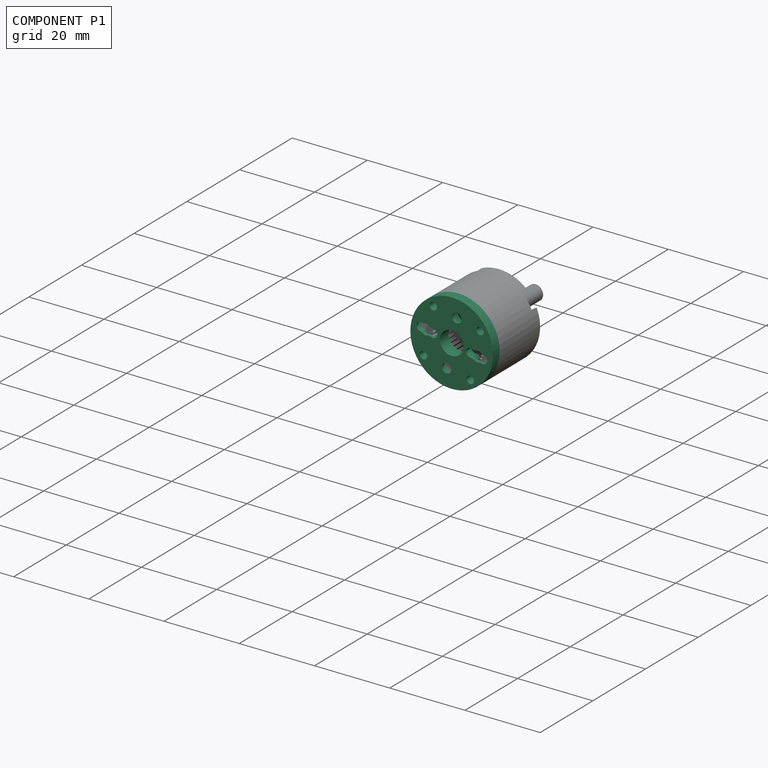
[diagram: component P1 — assembled]
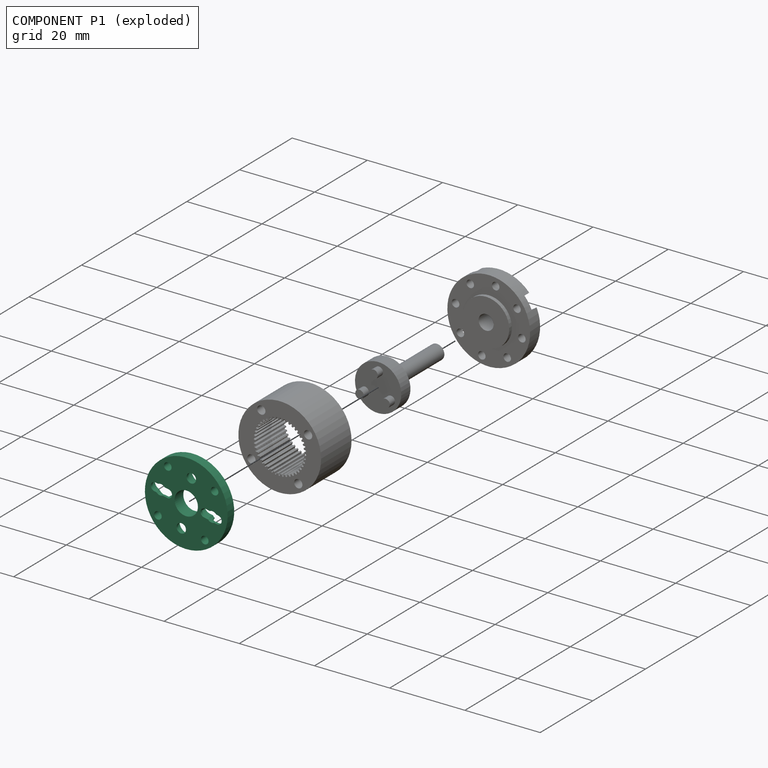
[diagram: component P1 — exploded]
COMPONENT P1 — recipe-attached (CADFS 00161362, mesh-verified: the recipe's output STEP matches this component's geometry to below the mesh-comparison resolution (tessellation chordal tolerance ~0.0469 mm)).
Held by: CYLINDRICAL mate "Cylindrical 2" to P4; REVOLUTE mate "Revolute 3" to P4; REVOLUTE mate "Revolute 3" to P4; CYLINDRICAL mate "Cylindrical 2" to P4.
Construction recipe (FeatureScript — the CAD program that rebuilds this solid; sketch coordinates are in the units given by the * unit suffixes, e.g. mm):

FeatureScript 1540;
import(path : "onshape/std/geometry.fs", version : "1540.0");
import(path : "onshape/std/common.fs", version : "1540.0");
const mm = millimeter;
const VERTEX = EntityType.VERTEX;
const EDGE = EntityType.EDGE;
const FACE = EntityType.FACE;
const BODY = EntityType.BODY;
function v(x, y){return vector(x, y);}
function OD(order){return orderDisambiguation(order);}
function OSD(set){return originalSetDisambiguation(set);}
function TD(topology){return topologyDisambiguation(topology);}
function TDD(query){return trueDependencyDisambiguation(query);}
function sQuery(a, b, c) {return sketchEntityQuery(a, b, c);}

annotation { "Feature Type Name" : "Feature", "Feature Type Description" : "" }
export const myFeature = defineFeature(function(context is Context, id is Id, definition is map)
    precondition{}
    {
        {
            var Q0;
            Q0=qCreatedBy(makeId("Front.planeOp"),FACE);
            var sketch = newSketch(context, id + "F0", { "sketchPlane" : qUnion([Q0])});
            skCircle(sketch, "E0", {"center": v(0, 0) * mm, "radius": 11 * mm});
            skSolve(sketch);
        }
        {
            var Q0;
            Q0=qCreatedBy(makeId("Front.planeOp"),FACE);
            var sketch = newSketch(context, id + "F1", { "sketchPlane" : qUnion([Q0])});
            skCircle(sketch, "E1", {"center": v(0, 0) * mm, "radius": 3.1 * mm});
            skLineSegment(sketch, "E2", {"start": v(0, 34) * mm, "end": v(0, -40.73) * mm, "construction": true});
            skLineSegment(sketch, "E3", {"start": v(35.1, 0) * mm, "end": v(-39.8, 0) * mm, "construction": true});
            skCircle(sketch, "E4", {"center": v(-6.5, 0) * mm, "radius": 1.25 * mm});
            skLineSegment(sketch, "E5", {"start": v(0, 0) * mm, "end": v(-31, 31) * mm, "construction": true});
            skCircle(sketch, "E6", {"center": v(-6.36, 6.36) * mm, "radius": 1 * mm});
            skPoint(sketch, "E7.center", {"position": v(0, -2.77) * mm});
            skCircle(sketch, "E8.1.0", {"center": v(-6.36, -6.36) * mm, "radius": 1 * mm});
            skCircle(sketch, "E8.2.0", {"center": v(6.36, -6.36) * mm, "radius": 1 * mm});
            skCircle(sketch, "E8.3.0", {"center": v(6.36, 6.36) * mm, "radius": 1 * mm});
            skCircle(sketch, "E9", {"center": v(6.5, 0) * mm, "radius": 1.25 * mm});
            skLineSegment(sketch, "E10.left", {"start": v(-1.1, -5) * mm, "end": v(-1.1, -6.13) * mm});
            skLineSegment(sketch, "E10.right", {"start": v(1.1, -5) * mm, "end": v(1.1, -6.13) * mm});
            skArc(sketch, "E11", {"start": v(-1.1, -8.5) * mm, "mid": v(0, -9.6) * mm, "end": v(1.1, -8.5) * mm});
            skArc(sketch, "E12", {"start": v(1.1, -5) * mm, "mid": v(0, -3.9) * mm, "end": v(-1.1, -5) * mm});
            skArc(sketch, "E13", {"start": v(-1.1, 7.87) * mm, "mid": v(-1.4, 7) * mm, "end": v(-1.1, 6.13) * mm});
            skPoint(sketch, "E13.centerSnap0", {"position": v(-1.1, 7) * mm});
            skArc(sketch, "E14", {"start": v(-1.1, -6.13) * mm, "mid": v(-1.4, -7) * mm, "end": v(-1.1, -7.87) * mm});
            skArc(sketch, "E15.trimOffspring", {"start": v(1.1, 6.13) * mm, "mid": v(1.4, 7) * mm, "end": v(1.1, 7.87) * mm});
            skArc(sketch, "E16.trimOffspring", {"start": v(1.1, -7.87) * mm, "mid": v(1.4, -7) * mm, "end": v(1.1, -6.13) * mm});
            skLineSegment(sketch, "E17.trimOffspring", {"start": v(-1.1, -7.87) * mm, "end": v(-1.1, -8.5) * mm});
            skLineSegment(sketch, "E18.trimOffspring", {"start": v(1.1, -7.87) * mm, "end": v(1.1, -8.5) * mm});
            skLineSegment(sketch, "E19.left", {"start": v(-1.1, 8.5) * mm, "end": v(-1.1, 7.87) * mm});
            skLineSegment(sketch, "E19.right", {"start": v(1.1, 8.5) * mm, "end": v(1.1, 7.87) * mm});
            skArc(sketch, "E20", {"start": v(1.1, 8.5) * mm, "mid": v(0, 9.6) * mm, "end": v(-1.1, 8.5) * mm});
            skArc(sketch, "E21", {"start": v(-1.1, 5) * mm, "mid": v(0, 3.9) * mm, "end": v(1.1, 5) * mm});
            skLineSegment(sketch, "E22.trimOffspring", {"start": v(-1.1, 6.13) * mm, "end": v(-1.1, 5) * mm});
            skLineSegment(sketch, "E23.trimOffspring", {"start": v(1.1, 6.13) * mm, "end": v(1.1, 5) * mm});
            skSolve(sketch);
        }
        {
            var Q0;
            Q0=qSketchRegion(id+"F0",true);
            extrude(context, id + "F2", {"entities" : qUnion([Q0]), "depth" : 2.5 * mm});
        }
        {
            var Q0;
            Q0=qSketchRegion(id+"F1",true);
            extrude(context, id + "F3", {"entities" : qUnion([Q0]), "operationType" : NewBodyOperationType.REMOVE, "endBound" : BoundingType.THROUGH_ALL, "depth" : 25 * mm});
        }
        {
            var Q0;
            Q0=makeQuery(id+"F2.opExtrude","CAP_FACE",FACE,{"disambiguationData":[OSD([sQuery(id+"F0.wireOp",EDGE,"E0")])],"isStart":false});
            var sketch = newSketch(context, id + "F4", { "sketchPlane" : qUnion([Q0])});
            skPoint(sketch, "E24.center", {"position": v(0, 0) * mm});
            skCircle(sketch, "E25", {"center": v(-6.5, 0) * mm, "radius": 2.2 * mm});
            skCircle(sketch, "E26", {"center": v(6.5, 0) * mm, "radius": 2.2 * mm});
            skArc(sketch, "E27", {"start": v(1.8, 5.27) * mm, "mid": v(2.5, 7.01) * mm, "end": v(1.78, 8.75) * mm});
            skArc(sketch, "E28", {"start": v(-1.8, -5.27) * mm, "mid": v(-2.5, -7.01) * mm, "end": v(-1.78, -8.75) * mm});
            skLineSegment(sketch, "E29.left", {"start": v(-1.8, 5.27) * mm, "end": v(-1.8, 4.4) * mm});
            skLineSegment(sketch, "E29.right", {"start": v(1.8, 5.27) * mm, "end": v(1.8, 4.4) * mm});
            skArc(sketch, "E30", {"start": v(1.78, 8.75) * mm, "mid": v(0, 10.3) * mm, "end": v(-1.78, 8.75) * mm});
            skArc(sketch, "E31", {"start": v(1.17, 3.03) * mm, "mid": v(1.63, 3.65) * mm, "end": v(1.8, 4.4) * mm});
            skArc(sketch, "E32", {"start": v(1.17, 3.03) * mm, "mid": v(0, 3.25) * mm, "end": v(-1.17, 3.03) * mm});
            skLineSegment(sketch, "E33.left", {"start": v(-1.8, -4.4) * mm, "end": v(-1.8, -5.27) * mm});
            skLineSegment(sketch, "E33.right", {"start": v(1.8, -4.4) * mm, "end": v(1.8, -5.27) * mm});
            skArc(sketch, "E34", {"start": v(-1.17, -3.03) * mm, "mid": v(-1.63, -3.65) * mm, "end": v(-1.8, -4.4) * mm});
            skArc(sketch, "E35", {"start": v(-1.78, -8.75) * mm, "mid": v(0, -10.3) * mm, "end": v(1.78, -8.75) * mm});
            skArc(sketch, "E36.trimOffspring", {"start": v(-1.17, -3.03) * mm, "mid": v(0, -3.25) * mm, "end": v(1.17, -3.03) * mm});
            skArc(sketch, "E37.trimOffspring", {"start": v(1.8, -4.4) * mm, "mid": v(1.63, -3.65) * mm, "end": v(1.17, -3.03) * mm});
            skArc(sketch, "E38.trimOffspring", {"start": v(1.78, -8.75) * mm, "mid": v(2.5, -7.01) * mm, "end": v(1.8, -5.27) * mm});
            skArc(sketch, "E39.trimOffspring", {"start": v(-1.8, 4.4) * mm, "mid": v(-1.63, 3.65) * mm, "end": v(-1.17, 3.03) * mm});
            skArc(sketch, "E40.trimOffspring", {"start": v(-1.78, 8.75) * mm, "mid": v(-2.5, 7.01) * mm, "end": v(-1.8, 5.27) * mm});
            skPoint(sketch, "E41.orphan", {"position": v(1.8, 8.5) * mm});
            skPoint(sketch, "E42.orphan", {"position": v(-1.8, 8.5) * mm});
            skSolve(sketch);
        }
        {
            var Q0;
            Q0=qSketchRegion(id+"F4",true);
            extrude(context, id + "F5", {"entities" : qUnion([Q0]), "operationType" : NewBodyOperationType.REMOVE, "oppositeDirection" : true, "depth" : 1.8 * mm});
        }
        {
            var Q0;
            Q0=makeQuery(id+"F2.opExtrude","CAP_FACE",FACE,{"disambiguationData":[OSD([sQuery(id+"F0.wireOp",EDGE,"E0")])],"isStart":false});
            var sketch = newSketch(context, id + "F6", { "sketchPlane" : qUnion([Q0])});
            skCircle(sketch, "E43", {"center": v(0, 0) * mm, "radius": 6.3 * mm});
            skSolve(sketch);
        }
        {
            var Q0;
            Q0 = qSketchRegion(id + "F6", true);
            extrude(context, id + "F7", {"entities" : qUnion([Q0]), "operationType" : NewBodyOperationType.ADD, "depth" : 0.8 * mm});
        }
        {
            var Q0;
            Q0 = qSketchRegion(id + "F4", true);
            extrude(context, id + "F8", {"entities" : qUnion([Q0]), "operationType" : NewBodyOperationType.REMOVE, "depth" : 0.8 * mm});
        }
        {
            var Q0;
            Q0 = qSketchRegion(id + "F1", true);
            extrude(context, id + "F9", {"entities" : qUnion([Q0]), "operationType" : NewBodyOperationType.REMOVE, "endBound" : BoundingType.THROUGH_ALL, "depth" : 25 * mm});
        }
    });
PROVENANCE & LICENSES
Assembly (occurrences, transforms, mates, per-part STEP geometry): AutoMate dataset, Zenodo record 7776208, CC0.
Construction recipes: CADFS (HuggingFace VladPyatov/CADFS, CC-BY-4.0, layered over the ABC dataset), FeatureScript reconstruction programs keyed by ABC model id.
Join: ABC meta listings map ABC model id -> Onshape documentId; within a shared document, parts are matched by geometric signature (bounding-box dims + volume at 0.1% relative tolerance, exact B-rep face/solid counts).
Verification: 3 of this assembly's 12 components carry a recipe attachment, and every attachment is mesh-verified: the CADFS STEP and the AutoMate member STEP were compared as meshes in their shared local frame (symmetric sampled-point-to-mesh distance); worst across the 3 attachments: below the mesh-comparison resolution (tessellation chordal tolerance ~0.0497 mm) on a 33 mm part.
Renders: orthographic iso camera (az 35 / el 25); the floor grid conveys scale (grid pitch printed in each image; no ruler). In the exploded view each component is displaced by its stored offset vector: the offsets alone carry the explosion direction (mate normal/axis signs are not orientation cues and do not encode it), and separation distances are assigned per mate-chain, not proportionally to assembly-order depth.
